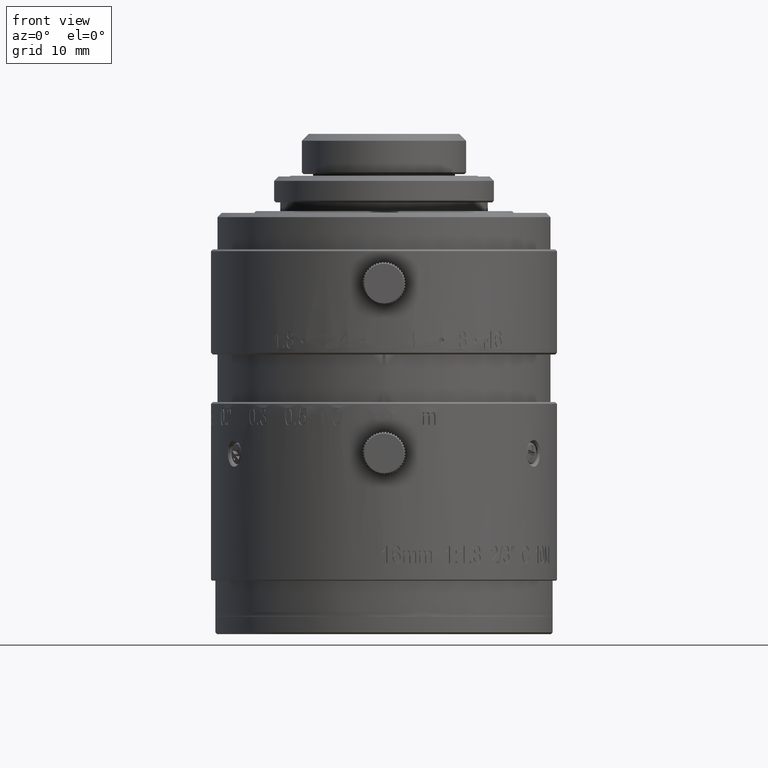
[diagram: clean part render]
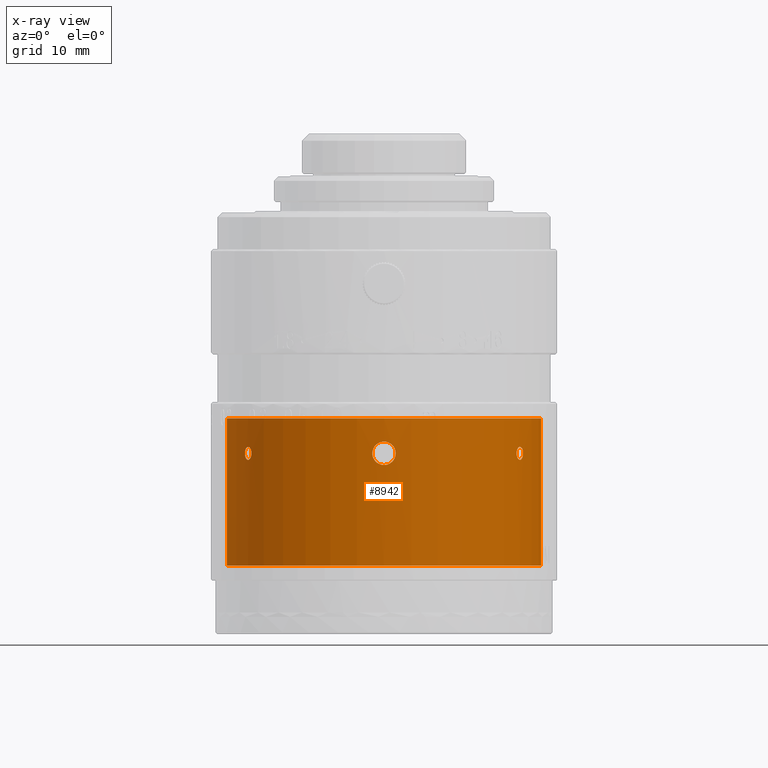
[diagram: x-ray — body ghosted, one internal face saturated and labeled with its STEP entity id]
A machine part, front view, then the same camera in x-ray: the body is ghosted and one INTERNAL B-rep face — a face not visible from any outside direction — is saturated and labeled: STEP entity #8942.
In plain terms, the highlighted cylindrical surface (partial cylindrical patch) has radius 18.15 mm, axis along (0, 0, -1).
Its self-contained STEP definition (entity closure, byte-faithful):
#249 = CARTESIAN_POINT ( 'NONE',  ( 15.32993552994999931, -9.716767808660000227, 22.30000000000000071 ) ) ;
#365 = CARTESIAN_POINT ( 'NONE',  ( 0.000000000000000000, -2.631723026938000415E-13, 9.339999999999999858 ) ) ;
#726 = CIRCLE ( 'NONE', #47610, 18.14999999999999858 ) ;
#1173 = ORIENTED_EDGE ( 'NONE', *, *, #78618, .T. ) ;
#1578 = CARTESIAN_POINT ( 'NONE',  ( 15.81965132887915360, -8.899520758256294073, 21.55046192490608803 ) ) ;
#2169 = CARTESIAN_POINT ( 'NONE',  ( -15.32993552994999931, -9.716767808660000227, 22.30000000000000071 ) ) ;
#2194 = CARTESIAN_POINT ( 'NONE',  ( 1.112865607183511019, -18.11655486482718658, 23.09687471633217726 ) ) ;
#2804 = CARTESIAN_POINT ( 'NONE',  ( 0.000000000000000000, -18.14999999999999858, 20.94999999999999929 ) ) ;
#4139 = B_SPLINE_CURVE_WITH_KNOTS ( 'NONE', 3,
 ( #56187, #70852, #6674, #57424, #12547, #12958, #50333, #62473, #77186, #38109, #19671, #37271, #56608, #76758 ),
 .UNSPECIFIED., .F., .F.,
 ( 4, 2, 2, 2, 2, 2, 4 ),
 ( 0.000000000000000000, 0.1249999999999986122, 0.2499999999999972244, 0.4999999999999988898, 0.7500000000000005551, 0.8750000000000002220, 1.000000000000000000 ),
 .UNSPECIFIED. ) ;
#4602 = CARTESIAN_POINT ( 'NONE',  ( 18.14999999999999858, -1.661320433427000034E-09, 26.33999999999999986 ) ) ;
#4724 = DIRECTION ( 'NONE',  ( 0.000000000000000000, 0.000000000000000000, 1.000000000000000000 ) ) ;
#4793 = ORIENTED_EDGE ( 'NONE', *, *, #15355, .T. ) ;
#5088 = CARTESIAN_POINT ( 'NONE',  ( 15.52049952291847390, -9.410445023810918741, 21.62881148834923195 ) ) ;
#5239 = CARTESIAN_POINT ( 'NONE',  ( -16.01169242874491516, -8.547107486185847591, 22.75573601655604605 ) ) ;
#5309 = EDGE_CURVE ( 'NONE', #65355, #14749, #61637, .T. ) ;
#5901 = VERTEX_POINT ( 'NONE', #55890 ) ;
#6674 = CARTESIAN_POINT ( 'NONE',  ( -16.07161195131903142, -8.433697575439957461, 22.10815046027038022 ) ) ;
#7056 = CARTESIAN_POINT ( 'NONE',  ( 15.91269872263665874, -8.730857861750731530, 21.63253469694180708 ) ) ;
#7507 = EDGE_CURVE ( 'NONE', #44743, #40757, #60435, .T. ) ;
#7678 = CARTESIAN_POINT ( 'NONE',  ( 1.213971165056987989, -18.11024556231967964, 22.91654989555664557 ) ) ;
#7877 = FACE_OUTER_BOUND ( 'NONE', #37245, .T. ) ;
#8532 = CARTESIAN_POINT ( 'NONE',  ( 18.14999999999999858, -4.915496869806999685E-10, 9.339999999999999858 ) ) ;
#8696 = CYLINDRICAL_SURFACE ( 'NONE', #66714, 18.14999999999999858 ) ;
#8706 = CARTESIAN_POINT ( 'NONE',  ( -0.1286788346218565582, -18.14999999999999147, 23.64999999999999503 ) ) ;
#8942 = ADVANCED_FACE ( 'NONE', ( #7877, #46051, #71653, #27572 ), #8696, .F. ) ;
#9095 = CARTESIAN_POINT ( 'NONE',  ( -0.1286709823108039552, -18.15000000000000213, 20.95000000000000995 ) ) ;
#9121 = EDGE_LOOP ( 'NONE', ( #51888, #68958 ) ) ;
#11118 = CARTESIAN_POINT ( 'NONE',  ( -16.07990372931112333, -8.417790450040177674, 22.39793957280416237 ) ) ;
#12547 = CARTESIAN_POINT ( 'NONE',  ( -16.01028664011899849, -8.549748063422665467, 21.84020234196319166 ) ) ;
#12958 = CARTESIAN_POINT ( 'NONE',  ( -15.90993421298007782, -8.735924354396404468, 21.62881148832289213 ) ) ;
#13943 = CARTESIAN_POINT ( 'NONE',  ( 15.76775997396272899, -8.989456981004599001, 23.05022207624115183 ) ) ;
#13978 = CARTESIAN_POINT ( 'NONE',  ( 1.214551716239353762, -18.11019439422025457, 21.68472644710971409 ) ) ;
#14376 = CARTESIAN_POINT ( 'NONE',  ( 1.331959949624933026, -18.10181769171969890, 22.01790053367414046 ) ) ;
#14749 = VERTEX_POINT ( 'NONE', #8532 ) ;
#15055 = CIRCLE ( 'NONE', #61945, 18.14999999999999858 ) ;
#15355 = EDGE_CURVE ( 'NONE', #14749, #27320, #67058, .T. ) ;
#15419 = CARTESIAN_POINT ( 'NONE',  ( -1.350010944565953608, -18.09972437321976813, 22.42825744918468800 ) ) ;
#15615 = CARTESIAN_POINT ( 'NONE',  ( 0.6150804439754277153, -18.13956945802846832, 23.51460530726577147 ) ) ;
#16529 = B_SPLINE_CURVE_WITH_KNOTS ( 'NONE', 3,
 ( #61030, #17824, #61868, #73625, #22857, #48454, #74057, #68167, #68598, #16579, #42155, #5239, #43402, #62292, #11118, #55593 ),
 .UNSPECIFIED., .F., .F.,
 ( 4, 2, 2, 2, 2, 2, 2, 4 ),
 ( 0.000000000000000000, 0.1249999999999998890, 0.2499999999999997780, 0.3749999999999996669, 0.4999999999999995559, 0.7499999999999991118, 0.8749999999999995559, 1.000000000000000000 ),
 .UNSPECIFIED. ) ;
#16579 = CARTESIAN_POINT ( 'NONE',  ( -15.81963803868671015, -8.899545941467106758, 23.04955024205768410 ) ) ;
#16651 = CARTESIAN_POINT ( 'NONE',  ( -1.331916109182827546, -18.10183200783373536, 22.01740676048633460 ) ) ;
#16756 = DIRECTION ( 'NONE',  ( 0.000000000000000000, 6.881004390859999864E-11, -1.000000000000000000 ) ) ;
#17062 = CARTESIAN_POINT ( 'NONE',  ( -0.2827680474727300997, -18.14790468344555663, 23.63184365025536593 ) ) ;
#17824 = CARTESIAN_POINT ( 'NONE',  ( -15.32997270948262525, -9.716709151319754767, 22.39890946367256319 ) ) ;
#19106 = VERTEX_POINT ( 'NONE', #2169 ) ;
#19671 = CARTESIAN_POINT ( 'NONE',  ( -15.37901330143135503, -9.638973003079593482, 21.92746093613043712 ) ) ;
#20245 = CARTESIAN_POINT ( 'NONE',  ( 15.90480351386861990, -8.744613419551445332, 22.95469797100083298 ) ) ;
#20474 = CARTESIAN_POINT ( 'NONE',  ( 16.01168703070983668, -8.547117545726903742, 21.84425041601099693 ) ) ;
#20664 = CARTESIAN_POINT ( 'NONE',  ( 16.01030245168351485, -8.549718258178733876, 22.75975418763480462 ) ) ;
#21064 = CARTESIAN_POINT ( 'NONE',  ( 15.32993552994999931, -9.716767808660000227, 22.30000000000000071 ) ) ;
#21483 = ORIENTED_EDGE ( 'NONE', *, *, #55032, .F. ) ;
#21897 = VERTEX_POINT ( 'NONE', #63431 ) ;
#22019 = B_SPLINE_CURVE_WITH_KNOTS ( 'NONE', 3,
 ( #2804, #9095, #29219, #41805, #48533, #34658, #60280, #16651, #28402, #15419, #47704, #72892, #73294, #66999, #42227, #17062, #8706, #29637 ),
 .UNSPECIFIED., .F., .F.,
 ( 4, 2, 2, 2, 2, 2, 2, 2, 4 ),
 ( 0.000000000000000000, 0.1250000000000000278, 0.2500000000000000555, 0.3750000000000001110, 0.5000000000000001110, 0.6250000000000001110, 0.7500000000000002220, 0.8750000000000002220, 1.000000000000000000 ),
 .UNSPECIFIED. ) ;
#22857 = CARTESIAN_POINT ( 'NONE',  ( -15.40942443262610162, -9.590469516337730482, 22.75975418762990188 ) ) ;
#23507 = EDGE_CURVE ( 'NONE', #41523, #51430, #76561, .T. ) ;
#25028 = EDGE_CURVE ( 'NONE', #21897, #19106, #4139, .T. ) ;
#25193 = EDGE_CURVE ( 'NONE', #25211, #65355, #15055, .T. ) ;
#25211 = VERTEX_POINT ( 'NONE', #66605 ) ;
#27171 = CARTESIAN_POINT ( 'NONE',  ( 15.32997272309148507, -9.716709129849338211, 22.20108427120009864 ) ) ;
#27288 = ORIENTED_EDGE ( 'NONE', *, *, #5309, .T. ) ;
#27320 = VERTEX_POINT ( 'NONE', #39574 ) ;
#27391 = CARTESIAN_POINT ( 'NONE',  ( 0.2824894669396529889, -18.14791389160569324, 23.63183696677459622 ) ) ;
#27572 = FACE_BOUND ( 'NONE', #72010, .T. ) ;
#28402 = CARTESIAN_POINT ( 'NONE',  ( -1.349989045612591143, -18.09972777804689414, 22.17151225566138351 ) ) ;
#28422 = CARTESIAN_POINT ( 'NONE',  ( 0.000000000000000000, -2.631723026938000415E-13, 26.33999999999999986 ) ) ;
#29219 = CARTESIAN_POINT ( 'NONE',  ( -0.2824902092328396286, -18.14791388458861121, 20.96816314102396461 ) ) ;
#29535 = EDGE_CURVE ( 'NONE', #41030, #5901, #50947, .T. ) ;
#29637 = CARTESIAN_POINT ( 'NONE',  ( 0.000000000000000000, -18.14999999999999858, 23.65000000000000213 ) ) ;
#29654 = DIRECTION ( 'NONE',  ( 0.000000000000000000, -1.000000000000000000, 0.000000000000000000 ) ) ;
#29882 = DIRECTION ( 'NONE',  ( 0.000000000000000000, -1.000000000000000000, 0.000000000000000000 ) ) ;
#30197 = EDGE_CURVE ( 'NONE', #19106, #21897, #16529, .T. ) ;
#30662 = CARTESIAN_POINT ( 'NONE',  ( 16.07990371310330247, -8.417790481001111047, 22.20204792524916115 ) ) ;
#31122 = CIRCLE ( 'NONE', #64623, 18.14999999999999858 ) ;
#32082 = ORIENTED_EDGE ( 'NONE', *, *, #29535, .T. ) ;
#32620 = CARTESIAN_POINT ( 'NONE',  ( 16.07138994492585837, -8.434113819355031794, 22.10794969752642203 ) ) ;
#33245 = CARTESIAN_POINT ( 'NONE',  ( 1.349989319103218621, -18.09972778231196955, 22.42848383066694495 ) ) ;
#33621 = CARTESIAN_POINT ( 'NONE',  ( 15.40785842628133473, -9.592978657790018460, 22.75573601654220468 ) ) ;
#34424 = CARTESIAN_POINT ( 'NONE',  ( 15.61705188681946410, -9.250435449411170907, 23.04955024205774450 ) ) ;
#34658 = CARTESIAN_POINT ( 'NONE',  ( -1.112866217237933775, -18.11655480452972000, 21.50312642285555143 ) ) ;
#36591 = VECTOR ( 'NONE', #16756, 1000.000000000000000 ) ;
#37245 = EDGE_LOOP ( 'NONE', ( #27288, #4793, #1173, #32082, #59358, #49088 ) ) ;
#37271 = CARTESIAN_POINT ( 'NONE',  ( -15.33985179843457303, -9.701175056752820325, 22.10794969753937167 ) ) ;
#38109 = CARTESIAN_POINT ( 'NONE',  ( -15.40786443908890746, -9.592968953172562152, 21.84425041599400075 ) ) ;
#38900 = CARTESIAN_POINT ( 'NONE',  ( 15.38039075394504174, -9.636780881794699383, 21.92221877869917535 ) ) ;
#39533 = CARTESIAN_POINT ( 'NONE',  ( 0.7930020216823354673, -18.13337853370947528, 23.41562850751903468 ) ) ;
#39574 = CARTESIAN_POINT ( 'NONE',  ( 0.000000000000000000, -18.15000000000026148, 9.339999999999999858 ) ) ;
#39824 = EDGE_LOOP ( 'NONE', ( #64804, #40221 ) ) ;
#40221 = ORIENTED_EDGE ( 'NONE', *, *, #25028, .T. ) ;
#40757 = VERTEX_POINT ( 'NONE', #249 ) ;
#40767 = CARTESIAN_POINT ( 'NONE',  ( 0.7960442153206861438, -18.13323745555111444, 21.18670708929130697 ) ) ;
#41030 = VERTEX_POINT ( 'NONE', #75951 ) ;
#41180 = CARTESIAN_POINT ( 'NONE',  ( 1.350010671559254805, -18.09972436933804119, 22.17174071919836109 ) ) ;
#41523 = VERTEX_POINT ( 'NONE', #67248 ) ;
#41805 = CARTESIAN_POINT ( 'NONE',  ( -0.6150817971311653976, -18.13956942294305463, 21.08539532354042478 ) ) ;
#42155 = CARTESIAN_POINT ( 'NONE',  ( -15.91269493392131018, -8.730864973902701109, 22.96747471729985079 ) ) ;
#42227 = CARTESIAN_POINT ( 'NONE',  ( -0.6162292537902580580, -18.13952341722777817, 23.51409504742017731 ) ) ;
#43402 = CARTESIAN_POINT ( 'NONE',  ( -16.03711258261213857, -8.499109955586085619, 22.67249628866207800 ) ) ;
#44184 = CARTESIAN_POINT ( 'NONE',  ( 0.000000000000000000, -18.14999999999999858, 23.65000000000000213 ) ) ;
#44305 = CARTESIAN_POINT ( 'NONE',  ( 0.000000000000000000, -18.14999999999999858, 20.94999999999999929 ) ) ;
#44743 = VERTEX_POINT ( 'NONE', #59914 ) ;
#45208 = CARTESIAN_POINT ( 'NONE',  ( 15.33960232383075706, -9.701575441879937145, 22.10815046025703268 ) ) ;
#45847 = CARTESIAN_POINT ( 'NONE',  ( 0.1286788621557955759, -18.15000000000000213, 20.94999999999999574 ) ) ;
#45926 = CARTESIAN_POINT ( 'NONE',  ( 18.14999999999999858, -1.158445930822000116E-09, 26.33999999999999986 ) ) ;
#46051 = FACE_BOUND ( 'NONE', #39824, .T. ) ;
#46637 = CARTESIAN_POINT ( 'NONE',  ( 15.37900142240506618, -9.638991922093426368, 22.67249628868509603 ) ) ;
#47049 = CARTESIAN_POINT ( 'NONE',  ( 15.94342383198284807, -8.673794060408610562, 22.90066503715980417 ) ) ;
#47083 = CARTESIAN_POINT ( 'NONE',  ( 0.2827681319552582950, -18.14790468194389561, 20.96815635686591506 ) ) ;
#47503 = CARTESIAN_POINT ( 'NONE',  ( 1.331916508893864259, -18.10183202117190149, 22.58259189060676775 ) ) ;
#47610 = AXIS2_PLACEMENT_3D ( 'NONE', #365, #62884, #77182 ) ;
#47704 = CARTESIAN_POINT ( 'NONE',  ( -1.331960234186726044, -18.10181769915576311, 22.58209847351452026 ) ) ;
#47717 = EDGE_CURVE ( 'NONE', #40757, #44743, #78058, .T. ) ;
#48454 = CARTESIAN_POINT ( 'NONE',  ( -15.48343791949828763, -9.470513031597612041, 22.90066503716470336 ) ) ;
#48533 = CARTESIAN_POINT ( 'NONE',  ( -0.7930045990715720583, -18.13337842559695545, 21.18437352968308574 ) ) ;
#48777 = CARTESIAN_POINT ( 'NONE',  ( 0.000000000000000000, -2.631723026938000415E-13, 26.33999999999999986 ) ) ;
#49088 = ORIENTED_EDGE ( 'NONE', *, *, #25193, .T. ) ;
#49204 = VECTOR ( 'NONE', #77386, 1000.000000000000000 ) ;
#49657 = AXIS2_PLACEMENT_3D ( 'NONE', #75950, #56626, #50352 ) ;
#50333 = CARTESIAN_POINT ( 'NONE',  ( -15.81791363617690571, -8.902608948638894404, 21.54954226008061013 ) ) ;
#50352 = DIRECTION ( 'NONE',  ( 1.000000000000000000, -6.381165528041999478E-11, 0.000000000000000000 ) ) ;
#50947 = LINE ( 'NONE', #76547, #49204 ) ;
#51430 = VERTEX_POINT ( 'NONE', #44305 ) ;
#51888 = ORIENTED_EDGE ( 'NONE', *, *, #7507, .T. ) ;
#52777 = DIRECTION ( 'NONE',  ( 0.000000000000000000, 0.000000000000000000, -1.000000000000000000 ) ) ;
#53792 = CARTESIAN_POINT ( 'NONE',  ( 0.1286706167002572565, -18.14999999999999503, 23.65000000000000213 ) ) ;
#55032 = EDGE_CURVE ( 'NONE', #51430, #41523, #22019, .T. ) ;
#55593 = CARTESIAN_POINT ( 'NONE',  ( -16.07993552994999931, -8.417729702982999385, 22.30000000000000071 ) ) ;
#55890 = CARTESIAN_POINT ( 'NONE',  ( -18.14999999999999858, 9.491063707010000046E-10, 26.33999999999999986 ) ) ;
#56187 = CARTESIAN_POINT ( 'NONE',  ( -16.07993552994999931, -8.417729702982999385, 22.30000000000000071 ) ) ;
#56608 = CARTESIAN_POINT ( 'NONE',  ( -15.32997225683418563, -9.716709865453454498, 22.20204792526106274 ) ) ;
#56626 = DIRECTION ( 'NONE',  ( 0.000000000000000000, 0.000000000000000000, -1.000000000000000000 ) ) ;
#57424 = CARTESIAN_POINT ( 'NONE',  ( -16.03589243130764075, -8.501418672156598078, 21.92221877867951463 ) ) ;
#57954 = EDGE_CURVE ( 'NONE', #5901, #25211, #31122, .T. ) ;
#58410 = CARTESIAN_POINT ( 'NONE',  ( 16.07161421101935161, -8.433693250790737395, 22.49183046359947014 ) ) ;
#59052 = CARTESIAN_POINT ( 'NONE',  ( 15.61884232756108126, -9.247410569490742915, 21.54954226008061369 ) ) ;
#59232 = CARTESIAN_POINT ( 'NONE',  ( 15.32997223812559895, -9.716709894969589811, 22.39793957277156622 ) ) ;
#59358 = ORIENTED_EDGE ( 'NONE', *, *, #57954, .T. ) ;
#59914 = CARTESIAN_POINT ( 'NONE',  ( 16.07993552994999931, -8.417729702982999385, 22.30000000000000071 ) ) ;
#60043 = CARTESIAN_POINT ( 'NONE',  ( 15.51749833138903867, -9.415365568469022506, 22.96747471732680523 ) ) ;
#60280 = CARTESIAN_POINT ( 'NONE',  ( -1.213971197614274411, -18.11024552097706319, 21.68345041376827709 ) ) ;
#60435 = B_SPLINE_CURVE_WITH_KNOTS ( 'NONE', 3,
 ( #65126, #71420, #58410, #79392, #20664, #47049, #20245, #78167, #13943, #34424, #60043, #33621, #46637, #71834, #59232, #21064 ),
 .UNSPECIFIED., .F., .F.,
 ( 4, 2, 2, 2, 2, 2, 2, 4 ),
 ( 0.000000000000000000, 0.1249999999999996392, 0.2499999999999992784, 0.3749999999999988898, 0.4999999999999985567, 0.7499999999999996669, 0.8749999999999998890, 1.000000000000000000 ),
 .UNSPECIFIED. ) ;
#61030 = CARTESIAN_POINT ( 'NONE',  ( -15.32993552994999931, -9.716767808660000227, 22.30000000000000071 ) ) ;
#61637 = LINE ( 'NONE', #4602, #36591 ) ;
#61868 = CARTESIAN_POINT ( 'NONE',  ( -15.33959970843907605, -9.701579561139814345, 22.49183046363727811 ) ) ;
#61945 = AXIS2_PLACEMENT_3D ( 'NONE', #28422, #72910, #29654 ) ;
#62292 = CARTESIAN_POINT ( 'NONE',  ( -16.07139202460590255, -8.434109817636533890, 22.49202674509741584 ) ) ;
#62473 = CARTESIAN_POINT ( 'NONE',  ( -15.61703672260453324, -9.250459550679527965, 21.55046192490607737 ) ) ;
#62884 = DIRECTION ( 'NONE',  ( 0.000000000000000000, 0.000000000000000000, -1.000000000000000000 ) ) ;
#63431 = CARTESIAN_POINT ( 'NONE',  ( -16.07993552994999931, -8.417729702982999385, 22.30000000000000071 ) ) ;
#64524 = CARTESIAN_POINT ( 'NONE',  ( 15.32993552994999931, -9.716767808660000227, 22.30000000000000071 ) ) ;
#64623 = AXIS2_PLACEMENT_3D ( 'NONE', #48777, #4724, #29882 ) ;
#64804 = ORIENTED_EDGE ( 'NONE', *, *, #30197, .T. ) ;
#65126 = CARTESIAN_POINT ( 'NONE',  ( 16.07993552994999931, -8.417729702982999385, 22.30000000000000071 ) ) ;
#65346 = DIRECTION ( 'NONE',  ( -1.000000000000000000, 0.000000000000000000, 0.000000000000000000 ) ) ;
#65350 = CARTESIAN_POINT ( 'NONE',  ( 16.03710213777589644, -8.499129702636821548, 21.92746093613708780 ) ) ;
#65355 = VERTEX_POINT ( 'NONE', #45926 ) ;
#66605 = CARTESIAN_POINT ( 'NONE',  ( 0.000000000000000000, -18.15000000000026148, 26.33999999999999986 ) ) ;
#66714 = AXIS2_PLACEMENT_3D ( 'NONE', #71234, #52777, #65346 ) ;
#66999 = CARTESIAN_POINT ( 'NONE',  ( -0.7960439079312628952, -18.13323746756444521, 23.41329310314407763 ) ) ;
#67058 = CIRCLE ( 'NONE', #49657, 18.14999999999999858 ) ;
#67248 = CARTESIAN_POINT ( 'NONE',  ( 0.000000000000000000, -18.14999999999999858, 23.65000000000000213 ) ) ;
#68167 = CARTESIAN_POINT ( 'NONE',  ( -15.62038289792253209, -9.243088055106873924, 23.03120566614293807 ) ) ;
#68598 = CARTESIAN_POINT ( 'NONE',  ( -15.66897809875354319, -9.160552207733912766, 23.05022207624119090 ) ) ;
#68852 = ORIENTED_EDGE ( 'NONE', *, *, #23507, .F. ) ;
#68958 = ORIENTED_EDGE ( 'NONE', *, *, #47717, .T. ) ;
#70852 = CARTESIAN_POINT ( 'NONE',  ( -16.07990330918010358, -8.417791252593843865, 22.20108427119507510 ) ) ;
#71234 = CARTESIAN_POINT ( 'NONE',  ( 0.000000000000000000, 0.000000000000000000, 0.000000000000000000 ) ) ;
#71420 = CARTESIAN_POINT ( 'NONE',  ( 16.07990332096925457, -8.417791230073657260, 22.39890946371793135 ) ) ;
#71653 = FACE_BOUND ( 'NONE', #9121, .T. ) ;
#71834 = CARTESIAN_POINT ( 'NONE',  ( 15.33984937268590265, -9.701178858665949534, 22.49202674506289412 ) ) ;
#72010 = EDGE_LOOP ( 'NONE', ( #68852, #21483 ) ) ;
#72055 = CARTESIAN_POINT ( 'NONE',  ( 16.07993552994999931, -8.417729702982999385, 22.30000000000000071 ) ) ;
#72892 = CARTESIAN_POINT ( 'NONE',  ( -1.214551744568857394, -18.11019440772686906, 22.91527365779686320 ) ) ;
#72910 = DIRECTION ( 'NONE',  ( 0.000000000000000000, 0.000000000000000000, 1.000000000000000000 ) ) ;
#73294 = CARTESIAN_POINT ( 'NONE',  ( -1.114037813204343808, -18.11647493512887408, 23.09500137585637347 ) ) ;
#73625 = CARTESIAN_POINT ( 'NONE',  ( -15.38038383549759658, -9.636791907529925538, 22.67775127396413382 ) ) ;
#74057 = CARTESIAN_POINT ( 'NONE',  ( -15.52545912453297916, -9.401657175446553438, 22.95469797100086495 ) ) ;
#75950 = CARTESIAN_POINT ( 'NONE',  ( 0.000000000000000000, -2.631723026938000415E-13, 9.339999999999999858 ) ) ;
#75951 = CARTESIAN_POINT ( 'NONE',  ( -18.14999999999999858, 0.000000000000000000, 9.339999999999999858 ) ) ;
#76547 = CARTESIAN_POINT ( 'NONE',  ( -18.14999999999999858, -2.206633682176999748E-10, 9.339999999999999858 ) ) ;
#76561 = B_SPLINE_CURVE_WITH_KNOTS ( 'NONE', 3,
 ( #44184, #53792, #27391, #15615, #39533, #2194, #7678, #47503, #33245, #41180, #14376, #13978, #79429, #40767, #78201, #47083, #45847, #79014 ),
 .UNSPECIFIED., .F., .F.,
 ( 4, 2, 2, 2, 2, 2, 2, 2, 4 ),
 ( 0.000000000000000000, 0.1250000000000000000, 0.2500000000000000000, 0.3750000000000000000, 0.5000000000000000000, 0.6250000000000000000, 0.7500000000000000000, 0.8750000000000000000, 1.000000000000000000 ),
 .UNSPECIFIED. ) ;
#76758 = CARTESIAN_POINT ( 'NONE',  ( -15.32993552994999931, -9.716767808660000227, 22.30000000000000071 ) ) ;
#77182 = DIRECTION ( 'NONE',  ( 1.000000000000000000, -6.381165528041999478E-11, 0.000000000000000000 ) ) ;
#77186 = CARTESIAN_POINT ( 'NONE',  ( -15.51749406641823903, -9.415372405708010817, 21.63253469699019504 ) ) ;
#77386 = DIRECTION ( 'NONE',  ( 0.000000000000000000, 6.880998464228000922E-11, 1.000000000000000000 ) ) ;
#78058 = B_SPLINE_CURVE_WITH_KNOTS ( 'NONE', 3,
 ( #64524, #27171, #45208, #38900, #78406, #5088, #59052, #1578, #7056, #20474, #65350, #32620, #30662, #72055 ),
 .UNSPECIFIED., .F., .F.,
 ( 4, 2, 2, 2, 2, 2, 4 ),
 ( 0.000000000000000000, 0.1249999999999997780, 0.2499999999999995559, 0.5000000000000000000, 0.7499999999999993339, 0.8749999999999996669, 1.000000000000000000 ),
 .UNSPECIFIED. ) ;
#78167 = CARTESIAN_POINT ( 'NONE',  ( 15.81494051410943946, -8.906104378871086524, 23.03120566614297005 ) ) ;
#78201 = CARTESIAN_POINT ( 'NONE',  ( 0.6162294776443988376, -18.13952340971944821, 21.08590505433543072 ) ) ;
#78406 = CARTESIAN_POINT ( 'NONE',  ( 15.40944233895033655, -9.590440920486123844, 21.84020234195722665 ) ) ;
#78618 = EDGE_CURVE ( 'NONE', #27320, #41030, #726, .T. ) ;
#79014 = CARTESIAN_POINT ( 'NONE',  ( 0.000000000000000000, -18.14999999999999858, 20.94999999999999929 ) ) ;
#79392 = CARTESIAN_POINT ( 'NONE',  ( 16.03589852064096277, -8.501407167756259042, 22.67775127400193469 ) ) ;
#79429 = CARTESIAN_POINT ( 'NONE',  ( 1.114038196739263187, -18.11647491110223029, 21.50499912327992291 ) ) ;